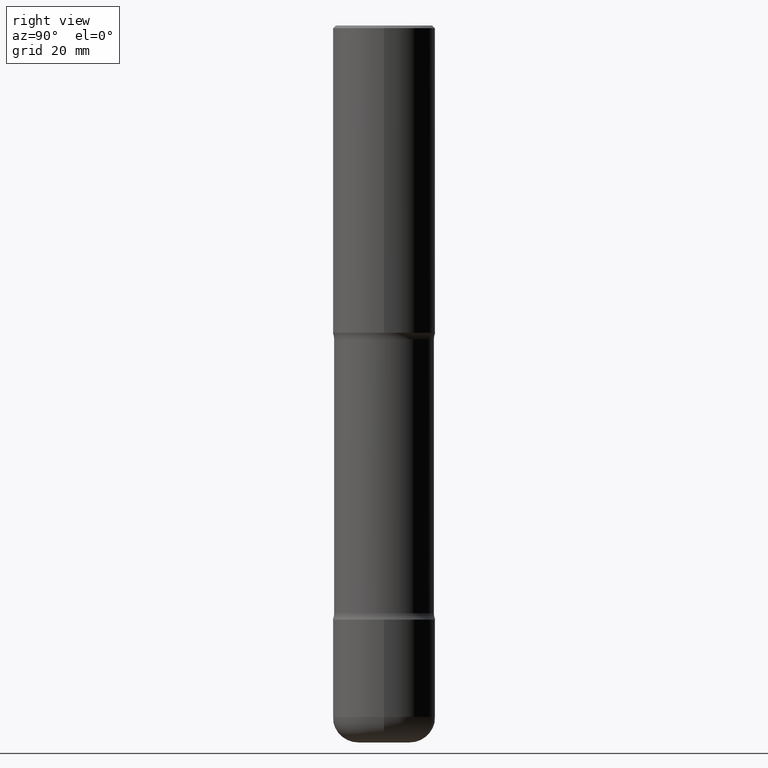
[diagram: clean part render]
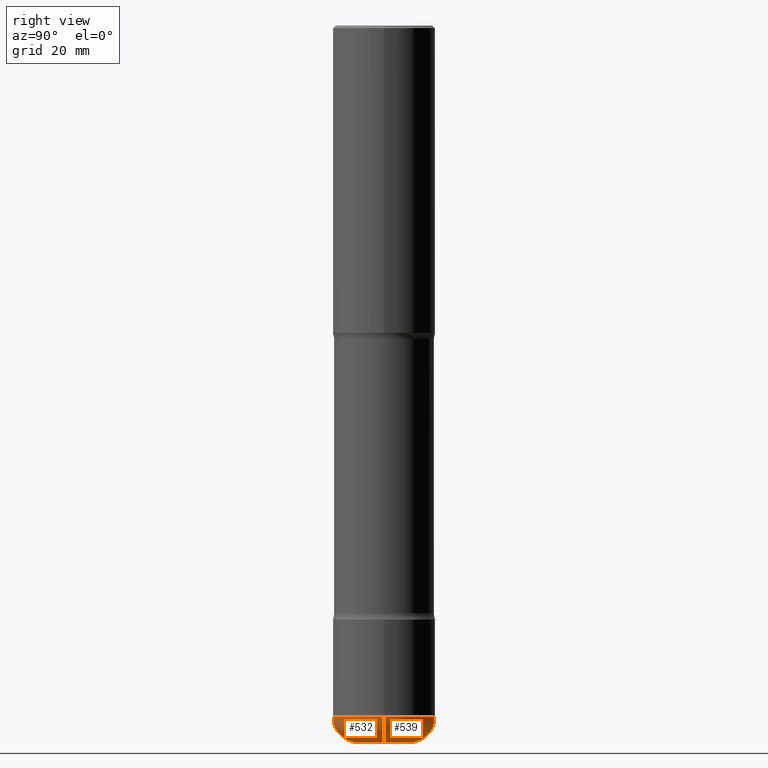
[diagram: same view with one multi-face feature highlighted, each face labeled with its STEP entity id]
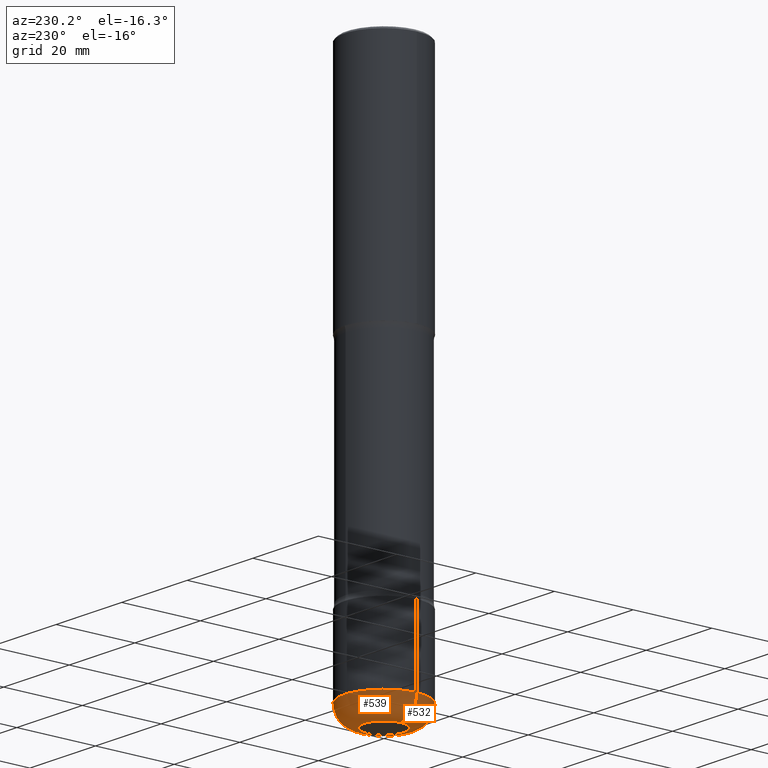
[diagram: same view with one multi-face feature highlighted, each face labeled with its STEP entity id]
A machine part, right view. The highlighted faces form ONE feature: a constant-radius fillet chain: 2 tangent blend faces with common blend radius 5.0013 mm. The faces share edges in the B-rep.
A second angle (auxiliary view) of the same feature is appended — it is thin or edge-on in the first view.
Their STEP definitions:
[1] entity #532 (Torus):
#2 = ORIENTED_EDGE ( 'NONE', *, *, #350, .T. ) ;
#4 = AXIS2_PLACEMENT_3D ( 'NONE', #15, #144, #134 ) ;
#15 = CARTESIAN_POINT ( 'NONE',  ( 0.1968000000000004746, -1.993112122278608958E-14, -5.314899999999998847 ) ) ;
#32 = ORIENTED_EDGE ( 'NONE', *, *, #187, .T. ) ;
#76 = VERTEX_POINT ( 'NONE', #86 ) ;
#86 = CARTESIAN_POINT ( 'NONE',  ( -0.3937000000000005495, -1.575946741712991118E-14, -5.314899999999998847 ) ) ;
#101 = CIRCLE ( 'NONE', #4, 0.1969000000000001582 ) ;
#118 = ORIENTED_EDGE ( 'NONE', *, *, #278, .F. ) ;
#134 = DIRECTION ( 'NONE',  ( 1.000000000000000000, -6.982962677686269077E-15, 0.000000000000000000 ) ) ;
#138 = VERTEX_POINT ( 'NONE', #448 ) ;
#140 = FACE_OUTER_BOUND ( 'NONE', #286, .T. ) ;
#144 = DIRECTION ( 'NONE',  ( -6.982962677686266711E-15, -1.000000000000000000, 3.491481338843145583E-15 ) ) ;
#145 = VERTEX_POINT ( 'NONE', #399 ) ;
#146 = DIRECTION ( 'NONE',  ( 1.000000000000000000, -6.982962677686269866E-15, 0.000000000000000000 ) ) ;
#167 = CARTESIAN_POINT ( 'NONE',  ( 1.347893496593123422E-28, -1.924434684343564562E-14, -5.511799999999999145 ) ) ;
#181 = VERTEX_POINT ( 'NONE', #358 ) ;
#187 = EDGE_CURVE ( 'NONE', #181, #138, #101, .T. ) ;
#207 = CIRCLE ( 'NONE', #540, 0.1968000000000005023 ) ;
#226 = DIRECTION ( 'NONE',  ( 1.000000000000000000, -6.982962677686266711E-15, 4.883557194083112340E-29 ) ) ;
#262 = CIRCLE ( 'NONE', #529, 0.3937000000000004940 ) ;
#275 = DIRECTION ( 'NONE',  ( -2.445468806185136597E-29, 3.491481338843145583E-15, 1.000000000000000000 ) ) ;
#278 = EDGE_CURVE ( 'NONE', #76, #138, #262, .T. ) ;
#279 = ORIENTED_EDGE ( 'NONE', *, *, #386, .F. ) ;
#286 = EDGE_LOOP ( 'NONE', ( #279, #2, #32, #118 ) ) ;
#298 = CIRCLE ( 'NONE', #376, 0.1969000000000001582 ) ;
#330 = AXIS2_PLACEMENT_3D ( 'NONE', #449, #275, #226 ) ;
#349 = DIRECTION ( 'NONE',  ( 1.000000000000000000, -6.982962677686264344E-15, 0.000000000000000000 ) ) ;
#350 = EDGE_CURVE ( 'NONE', #145, #181, #207, .T. ) ;
#358 = CARTESIAN_POINT ( 'NONE',  ( 0.1968000000000005023, -2.061859389840430688E-14, -5.511799999999999145 ) ) ;
#376 = AXIS2_PLACEMENT_3D ( 'NONE', #426, #432, #483 ) ;
#386 = EDGE_CURVE ( 'NONE', #145, #76, #298, .T. ) ;
#399 = CARTESIAN_POINT ( 'NONE',  ( -0.1968000000000005023, -1.680273307829483794E-14, -5.511799999999999145 ) ) ;
#426 = CARTESIAN_POINT ( 'NONE',  ( -0.1968000000000004746, -1.715852606384155055E-14, -5.314899999999998847 ) ) ;
#432 = DIRECTION ( 'NONE',  ( 7.105427357601001859E-15, 1.000000000000000000, -3.491481338843145583E-15 ) ) ;
#435 = DIRECTION ( 'NONE',  ( -2.445468806185136597E-29, 3.491481338843145583E-15, 1.000000000000000000 ) ) ;
#448 = CARTESIAN_POINT ( 'NONE',  ( 0.3937000000000005495, -2.130606657402251786E-14, -5.314899999999998847 ) ) ;
#449 = CARTESIAN_POINT ( 'NONE',  ( 1.299742215799337779E-28, -1.855687416781742833E-14, -5.314899999999998847 ) ) ;
#483 = DIRECTION ( 'NONE',  ( -1.000000000000000000, 7.105427357601006592E-15, 0.000000000000000000 ) ) ;
#497 = CARTESIAN_POINT ( 'NONE',  ( 1.299742215799337779E-28, -1.855687416781742833E-14, -5.314899999999998847 ) ) ;
#507 = TOROIDAL_SURFACE ( 'NONE', #330, 0.1968000000000004746, 0.1969000000000001582 ) ;
#529 = AXIS2_PLACEMENT_3D ( 'NONE', #497, #543, #146 ) ;
#532 = ADVANCED_FACE ( 'NONE', ( #140 ), #507, .T. ) ;
#540 = AXIS2_PLACEMENT_3D ( 'NONE', #167, #435, #349 ) ;
#543 = DIRECTION ( 'NONE',  ( -2.445468806185136597E-29, 3.491481338843145583E-15, 1.000000000000000000 ) ) ;
[2] entity #539 (Torus):
#4 = AXIS2_PLACEMENT_3D ( 'NONE', #15, #144, #134 ) ;
#15 = CARTESIAN_POINT ( 'NONE',  ( 0.1968000000000004746, -1.993112122278608958E-14, -5.314899999999998847 ) ) ;
#22 = ORIENTED_EDGE ( 'NONE', *, *, #89, .T. ) ;
#44 = CARTESIAN_POINT ( 'NONE',  ( 1.347893496593123422E-28, -1.924434684343564562E-14, -5.511799999999999145 ) ) ;
#60 = EDGE_LOOP ( 'NONE', ( #22, #444, #260, #332 ) ) ;
#69 = CIRCLE ( 'NONE', #384, 0.3937000000000004940 ) ;
#76 = VERTEX_POINT ( 'NONE', #86 ) ;
#79 = AXIS2_PLACEMENT_3D ( 'NONE', #183, #307, #236 ) ;
#86 = CARTESIAN_POINT ( 'NONE',  ( -0.3937000000000005495, -1.575946741712991118E-14, -5.314899999999998847 ) ) ;
#89 = EDGE_CURVE ( 'NONE', #181, #145, #514, .T. ) ;
#101 = CIRCLE ( 'NONE', #4, 0.1969000000000001582 ) ;
#134 = DIRECTION ( 'NONE',  ( 1.000000000000000000, -6.982962677686269077E-15, 0.000000000000000000 ) ) ;
#138 = VERTEX_POINT ( 'NONE', #448 ) ;
#144 = DIRECTION ( 'NONE',  ( -6.982962677686266711E-15, -1.000000000000000000, 3.491481338843145583E-15 ) ) ;
#145 = VERTEX_POINT ( 'NONE', #399 ) ;
#163 = DIRECTION ( 'NONE',  ( 1.000000000000000000, -6.982962677686264344E-15, 0.000000000000000000 ) ) ;
#169 = AXIS2_PLACEMENT_3D ( 'NONE', #44, #210, #163 ) ;
#181 = VERTEX_POINT ( 'NONE', #358 ) ;
#183 = CARTESIAN_POINT ( 'NONE',  ( 1.299742215799337779E-28, -1.855687416781742833E-14, -5.314899999999998847 ) ) ;
#187 = EDGE_CURVE ( 'NONE', #181, #138, #101, .T. ) ;
#208 = TOROIDAL_SURFACE ( 'NONE', #79, 0.1968000000000004746, 0.1969000000000001582 ) ;
#210 = DIRECTION ( 'NONE',  ( -2.445468806185136597E-29, 3.491481338843145583E-15, 1.000000000000000000 ) ) ;
#223 = DIRECTION ( 'NONE',  ( -2.445468806185136597E-29, 3.491481338843145583E-15, 1.000000000000000000 ) ) ;
#236 = DIRECTION ( 'NONE',  ( 1.000000000000000000, -6.982962677686266711E-15, 4.883557194083112340E-29 ) ) ;
#257 = EDGE_CURVE ( 'NONE', #138, #76, #69, .T. ) ;
#260 = ORIENTED_EDGE ( 'NONE', *, *, #257, .F. ) ;
#272 = CARTESIAN_POINT ( 'NONE',  ( 1.299742215799337779E-28, -1.855687416781742833E-14, -5.314899999999998847 ) ) ;
#298 = CIRCLE ( 'NONE', #376, 0.1969000000000001582 ) ;
#307 = DIRECTION ( 'NONE',  ( -2.445468806185136597E-29, 3.491481338843145583E-15, 1.000000000000000000 ) ) ;
#332 = ORIENTED_EDGE ( 'NONE', *, *, #187, .F. ) ;
#358 = CARTESIAN_POINT ( 'NONE',  ( 0.1968000000000005023, -2.061859389840430688E-14, -5.511799999999999145 ) ) ;
#376 = AXIS2_PLACEMENT_3D ( 'NONE', #426, #432, #483 ) ;
#384 = AXIS2_PLACEMENT_3D ( 'NONE', #272, #223, #398 ) ;
#386 = EDGE_CURVE ( 'NONE', #145, #76, #298, .T. ) ;
#398 = DIRECTION ( 'NONE',  ( 1.000000000000000000, -6.982962677686269866E-15, 0.000000000000000000 ) ) ;
#399 = CARTESIAN_POINT ( 'NONE',  ( -0.1968000000000005023, -1.680273307829483794E-14, -5.511799999999999145 ) ) ;
#426 = CARTESIAN_POINT ( 'NONE',  ( -0.1968000000000004746, -1.715852606384155055E-14, -5.314899999999998847 ) ) ;
#432 = DIRECTION ( 'NONE',  ( 7.105427357601001859E-15, 1.000000000000000000, -3.491481338843145583E-15 ) ) ;
#441 = FACE_OUTER_BOUND ( 'NONE', #60, .T. ) ;
#444 = ORIENTED_EDGE ( 'NONE', *, *, #386, .T. ) ;
#448 = CARTESIAN_POINT ( 'NONE',  ( 0.3937000000000005495, -2.130606657402251786E-14, -5.314899999999998847 ) ) ;
#483 = DIRECTION ( 'NONE',  ( -1.000000000000000000, 7.105427357601006592E-15, 0.000000000000000000 ) ) ;
#514 = CIRCLE ( 'NONE', #169, 0.1968000000000005023 ) ;
#539 = ADVANCED_FACE ( 'NONE', ( #441 ), #208, .T. ) ;